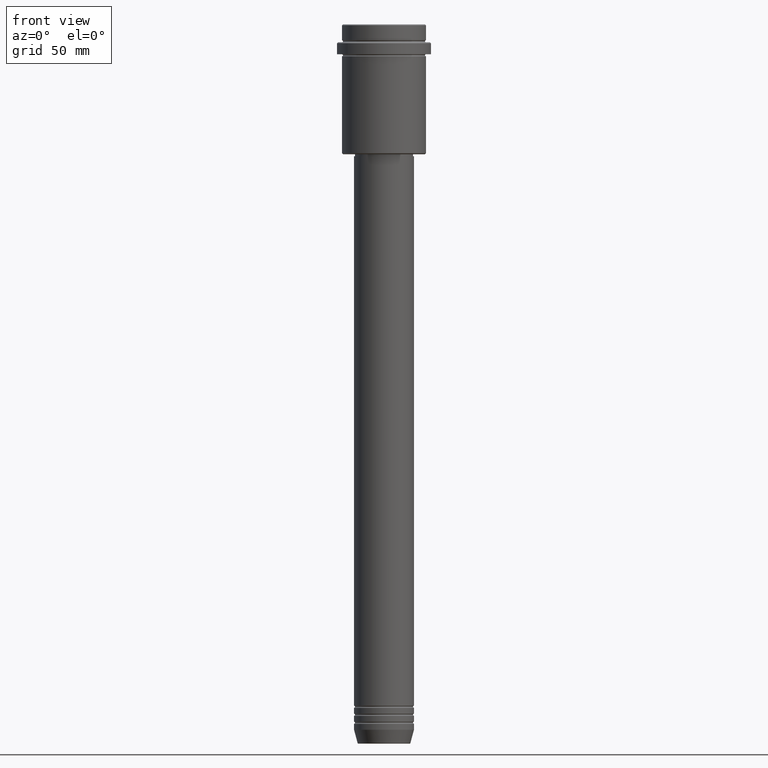
[diagram: clean part render]
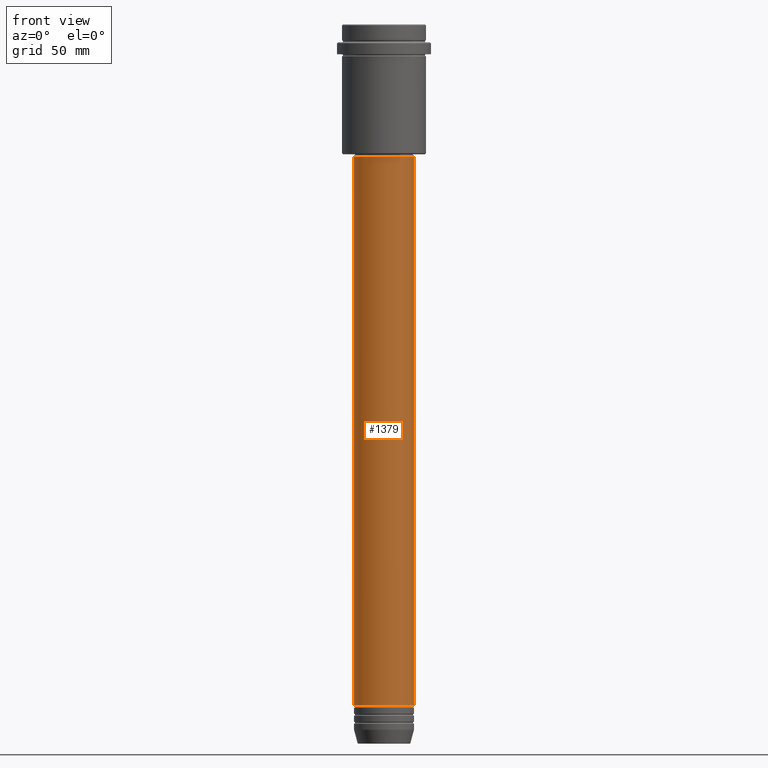
[diagram: same view with one face highlighted and labeled with its STEP entity id]
A machine part, front view. The second image highlights one B-rep face of the part: STEP entity #1379.
In plain terms, the highlighted cylindrical surface (edge-blend (fillet) strip) has radius 15 mm, axis along (-0, -0, 1).
Its self-contained STEP definition (entity closure, byte-faithful):
#3 = VECTOR ( 'NONE', #300, 1000.000000000000000 ) ;
#30 = CIRCLE ( 'NONE', #78, 15.00000000000000000 ) ;
#71 = VERTEX_POINT ( 'NONE', #631 ) ;
#78 = AXIS2_PLACEMENT_3D ( 'NONE', #103, #650, #632 ) ;
#103 = CARTESIAN_POINT ( 'NONE',  ( 0.000000000000000000, 0.000000000000000000, -340.9999999999998863 ) ) ;
#110 = CARTESIAN_POINT ( 'NONE',  ( 15.00000000000000000, 0.000000000000000000, 0.000000000000000000 ) ) ;
#186 = AXIS2_PLACEMENT_3D ( 'NONE', #1132, #1343, #592 ) ;
#205 = LINE ( 'NONE', #110, #3 ) ;
#208 = CARTESIAN_POINT ( 'NONE',  ( 15.00000000000000000, 0.000000000000000000, -66.00000000000002842 ) ) ;
#218 = FACE_OUTER_BOUND ( 'NONE', #1228, .T. ) ;
#251 = CIRCLE ( 'NONE', #186, 15.00000000000000000 ) ;
#267 = ORIENTED_EDGE ( 'NONE', *, *, #1006, .F. ) ;
#300 = DIRECTION ( 'NONE',  ( -0.000000000000000000, -0.000000000000000000, 1.000000000000000000 ) ) ;
#431 = CYLINDRICAL_SURFACE ( 'NONE', #1355, 15.00000000000000000 ) ;
#486 = VERTEX_POINT ( 'NONE', #558 ) ;
#521 = VECTOR ( 'NONE', #1145, 1000.000000000000000 ) ;
#547 = CARTESIAN_POINT ( 'NONE',  ( 0.000000000000000000, 0.000000000000000000, 0.000000000000000000 ) ) ;
#558 = CARTESIAN_POINT ( 'NONE',  ( -15.00000000000000000, 1.836970198721029589E-15, -66.00000000000002842 ) ) ;
#592 = DIRECTION ( 'NONE',  ( 1.000000000000000000, 0.000000000000000000, 0.000000000000000000 ) ) ;
#631 = CARTESIAN_POINT ( 'NONE',  ( -15.00000000000000000, 1.836970198721029589E-15, -340.9999999999998863 ) ) ;
#632 = DIRECTION ( 'NONE',  ( 1.000000000000000000, 0.000000000000000000, 0.000000000000000000 ) ) ;
#650 = DIRECTION ( 'NONE',  ( -0.000000000000000000, -0.000000000000000000, 1.000000000000000000 ) ) ;
#656 = DIRECTION ( 'NONE',  ( 1.000000000000000000, 0.000000000000000000, 0.000000000000000000 ) ) ;
#712 = CARTESIAN_POINT ( 'NONE',  ( -15.00000000000000000, 1.836970198721029589E-15, 0.000000000000000000 ) ) ;
#730 = VERTEX_POINT ( 'NONE', #1058 ) ;
#869 = ORIENTED_EDGE ( 'NONE', *, *, #1321, .T. ) ;
#962 = DIRECTION ( 'NONE',  ( -0.000000000000000000, -0.000000000000000000, 1.000000000000000000 ) ) ;
#967 = VERTEX_POINT ( 'NONE', #208 ) ;
#1006 = EDGE_CURVE ( 'NONE', #486, #967, #251, .T. ) ;
#1058 = CARTESIAN_POINT ( 'NONE',  ( 15.00000000000000000, 0.000000000000000000, -340.9999999999998863 ) ) ;
#1110 = ORIENTED_EDGE ( 'NONE', *, *, #1367, .T. ) ;
#1132 = CARTESIAN_POINT ( 'NONE',  ( 0.000000000000000000, 0.000000000000000000, -66.00000000000002842 ) ) ;
#1145 = DIRECTION ( 'NONE',  ( -0.000000000000000000, -0.000000000000000000, 1.000000000000000000 ) ) ;
#1149 = ORIENTED_EDGE ( 'NONE', *, *, #1251, .F. ) ;
#1172 = LINE ( 'NONE', #712, #521 ) ;
#1228 = EDGE_LOOP ( 'NONE', ( #1149, #869, #1110, #267 ) ) ;
#1251 = EDGE_CURVE ( 'NONE', #71, #486, #1172, .T. ) ;
#1321 = EDGE_CURVE ( 'NONE', #71, #730, #30, .T. ) ;
#1343 = DIRECTION ( 'NONE',  ( -0.000000000000000000, -0.000000000000000000, 1.000000000000000000 ) ) ;
#1355 = AXIS2_PLACEMENT_3D ( 'NONE', #547, #962, #656 ) ;
#1367 = EDGE_CURVE ( 'NONE', #730, #967, #205, .T. ) ;
#1379 = ADVANCED_FACE ( 'NONE', ( #218 ), #431, .T. ) ;